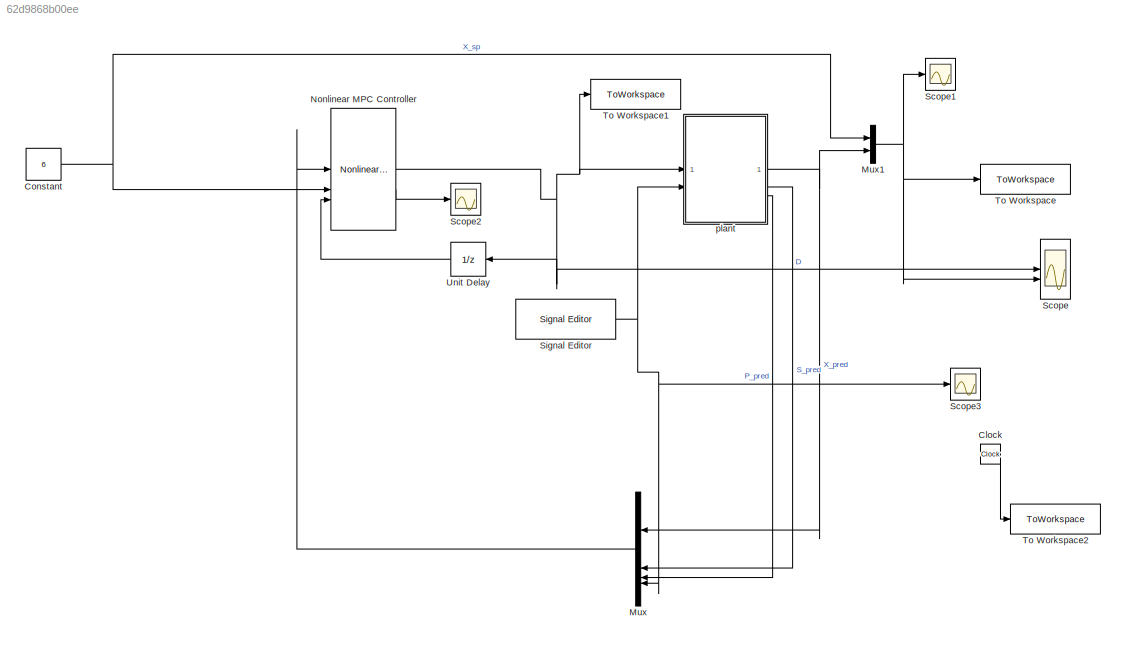
MODEL slx_62d9868b00ee
KIND model
CONFIG AbsTol = auto
CONFIG EnableMultiTasking = off
CONFIG FixedStep = auto
CONFIG MaxStep = auto
CONFIG MinStep = auto
CONFIG RelTol = 1e-3
CONFIG SampleTimeConstraint = Unconstrained
CONFIG SolverName = VariableStepAuto
CONFIG StartTime = 0.0
CONFIG StopTime = 500
BLOCK [Clock] Clock
BLOCK [Constant] Constant
  Value = 6
BLOCK [Mux] Mux
  DisplayOption = bar
BLOCK [Mux] Mux1
  DisplayOption = bar
  Inputs = 2
BLOCK [Reference] Nonlinear MPC Controller  REF=mpclib/Nonlinear MPC Controller  (lib defined in mdl_ae329e0e0455)
  SourceBlock = mpclib/Nonlinear MPC Controller
  SourceType = NonlinearMPC
BLOCK [Scope] Scope
  Floating = off
  NumInputPorts = 2
  ScopeSpecificationString = Simulink.scopes.TimeScopeBlockCfg('CurrentConfiguration', extmgr.ConfigurationSet(extmgr.Configuration('Core','General UI',true),extmgr.Configuration('Core','Source UI',true),extmgr.Configuration('Sources','WiredSimulink',true),extmgr.Configuration('Visuals','Time Domain',true,'SerializedDisplays',{struct('MinYLimReal','0.1518','MaxYLimReal','0.20745','YLabelReal','','MinYLimMag','0.1518','MaxYLim...<+2284ch>
BLOCK [Scope] Scope1
  Floating = off
  NumInputPorts = 1
  ScopeSpecificationString = Simulink.scopes.TimeScopeBlockCfg('CurrentConfiguration', extmgr.ConfigurationSet(extmgr.Configuration('Core','General UI',true),extmgr.Configuration('Core','Source UI',true),extmgr.Configuration('Sources','WiredSimulink',true,'DataLoggingVariableName','ScopeData1'),extmgr.Configuration('Visuals','Time Domain',true,'SerializedDisplays',{struct('MinYLimReal','-0.88895','MaxYLimReal','8.00056','YLab...<+1359ch>
BLOCK [Scope] Scope2
  Floating = off
  NumInputPorts = 1
  ScopeSpecificationString = Simulink.scopes.TimeScopeBlockCfg('CurrentConfiguration', extmgr.ConfigurationSet(extmgr.Configuration('Core','General UI',true),extmgr.Configuration('Core','Source UI',true),extmgr.Configuration('Sources','WiredSimulink',true,'DataLoggingVariableName','ScopeData2'),extmgr.Configuration('Visuals','Time Domain',true,'SerializedDisplays',{struct('MinYLimReal','0.875','MaxYLimReal','2.125','YLabelRea...<+1341ch>
BLOCK [Scope] Scope3
  Floating = off
  NumInputPorts = 1
  ScopeSpecificationString = Simulink.scopes.TimeScopeBlockCfg('CurrentConfiguration', extmgr.ConfigurationSet(extmgr.Configuration('Core','General UI',true),extmgr.Configuration('Core','Source UI',true),extmgr.Configuration('Sources','WiredSimulink',true,'DataLoggingVariableName','ScopeData1'),extmgr.Configuration('Visuals','Time Domain',true,'SerializedDisplays',{struct('MinYLimReal','0.34375','MaxYLimReal','0.40625','YLabe...<+1370ch>
BLOCK [Reference] Signal Editor  REF=SignalEditorBlockLib/Signal Editor
  LibrarySourceBlock = simulink/Sources/Signal Editor
  SourceBlock = SignalEditorBlockLib/Signal Editor
  SourceType = SignalEditor
  UserDataPersistent = on
BLOCK [ToWorkspace] To Workspace
  FixptAsFi = on
  MaxDataPoints = inf
  SampleTime = Ts
  SaveFormat = Timeseries
  VariableName = X_nom
BLOCK [ToWorkspace] To Workspace1
  FixptAsFi = on
  MaxDataPoints = inf
  SampleTime = Ts
  SaveFormat = Timeseries
  VariableName = D_nom
BLOCK [ToWorkspace] To Workspace2
  FixptAsFi = on
  MaxDataPoints = inf
  SampleTime = Ts
  SaveFormat = Timeseries
  VariableName = t_save
BLOCK [UnitDelay] Unit Delay
  HasFrameUpgradeWarning = on
  InitialCondition = 0.202
  SampleTime = Ts
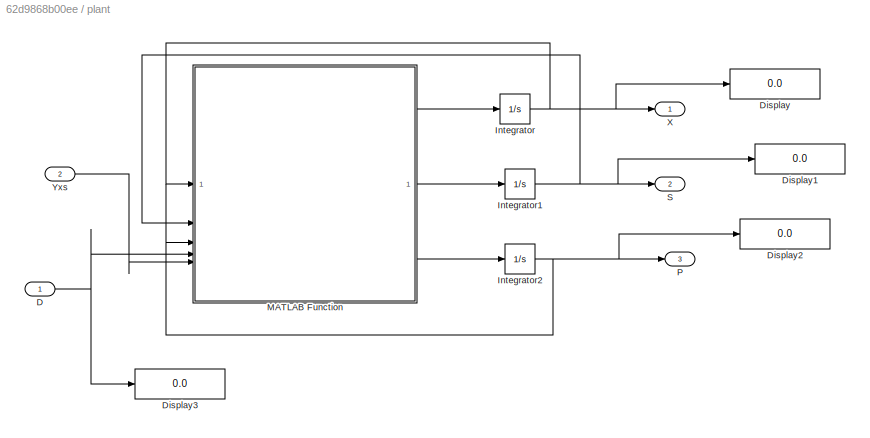
BLOCK [SubSystem] plant
BLOCK [Inport] plant/D
BLOCK [Display] plant/Display
  Decimation = 1
BLOCK [Display] plant/Display1
  Decimation = 1
BLOCK [Display] plant/Display2
  Decimation = 1
BLOCK [Display] plant/Display3
  Decimation = 1
BLOCK [Integrator] plant/Integrator
  InitialCondition = 5
BLOCK [Integrator] plant/Integrator1
  InitialCondition = 5
BLOCK [Integrator] plant/Integrator2
  InitialCondition = 19.14
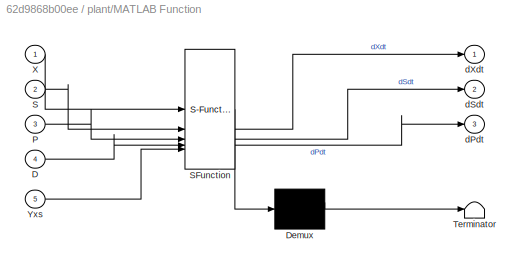
BLOCK [SubSystem] plant/MATLAB Function
  ErrorFcn = Stateflow.Translate.translate
  PermitHierarchicalResolution = ExplicitOnly
  SFBlockType = MATLAB Function
  TreatAsAtomicUnit = on
BLOCK [Demux] plant/MATLAB Function/ Demux 
  Outputs = 1
BLOCK [S-Function] plant/MATLAB Function/ SFunction 
  EnableBusSupport = on
  FunctionName = sf_sfun
  PortCounts = [5 4]
  SFcnIsStateOwnerBlock = off
  SFunctionDeploymentMode = off
  Tag = Stateflow S-Function 2
BLOCK [Terminator] plant/MATLAB Function/ Terminator 
BLOCK [Inport] plant/MATLAB Function/D
  Port = 4
BLOCK [Inport] plant/MATLAB Function/P
  Port = 3
BLOCK [Inport] plant/MATLAB Function/S
  Port = 2
BLOCK [Inport] plant/MATLAB Function/X
BLOCK [Inport] plant/MATLAB Function/Yxs
  Port = 5
BLOCK [Outport] plant/MATLAB Function/dPdt
  Port = 3
BLOCK [Outport] plant/MATLAB Function/dSdt
  Port = 2
BLOCK [Outport] plant/MATLAB Function/dXdt
BLOCK [Outport] plant/P
  Port = 3
BLOCK [Outport] plant/S
  Port = 2
BLOCK [Outport] plant/X
BLOCK [Inport] plant/Yxs
  Port = 2
LINE Clock:1 -> To Workspace2:1
NET Constant:1 -> Mux1:1, Nonlinear MPC Controller:2
NET Mux1:1 -> Scope1:1, Scope:2, To Workspace:1
LINE Mux:1 -> Nonlinear MPC Controller:1
NET Nonlinear MPC Controller:1 -> Scope:1, To Workspace1:1, Unit Delay:1, plant:1
LINE Nonlinear MPC Controller:2 -> Scope2:1
NET Signal Editor:1 -> Mux:4, Scope3:1, plant:2
LINE Unit Delay:1 -> Nonlinear MPC Controller:3
NET plant/D:1 -> plant/Display3:1, plant/MATLAB Function:4
NET plant/Integrator1:1 -> plant/Display1:1, plant/MATLAB Function:2, plant/S:1
NET plant/Integrator2:1 -> plant/Display2:1, plant/MATLAB Function:3, plant/P:1
NET plant/Integrator:1 -> plant/Display:1, plant/MATLAB Function:1, plant/X:1
LINE plant/MATLAB Function:1 -> plant/Integrator:1
LINE plant/MATLAB Function:2 -> plant/Integrator1:1
LINE plant/MATLAB Function:3 -> plant/Integrator2:1
LINE plant/Yxs:1 -> plant/MATLAB Function:5
NET plant:1 -> Mux1:2, Mux:1
LINE plant:2 -> Mux:2
LINE plant:3 -> Mux:3
note: NET lines group one-source signal fan-out (src -> all destinations, sorted); 1:1 wires keep LINE
CHART plant/MATLAB Function states=1 transitions=1
  STATE_LABEL 'eML_blk_kernel()'
  STATE_LABEL 'SCRIPT:\nfunction [dXdt,dSdt,dPdt] = continuous_fermenter(X,S,P,D,Yxs)\n\nvalues = {22,1.2,50,20,2.2,0.2,0.48};\n\n[Ki,Km,Pm,Sf,alpha,beta,miu_m] = values{:};\n\n\nmiu = (miu_m * (1 - (P/Pm))) * S / (Km + S + (S^2 / Ki))  ;\n\ndXdt = -D * X + miu * X     ;\n\ndSdt = D * (Sf - S) - (1/Yxs) * miu * X   ;\n\ndPdt = -D * P + (alpha * miu + beta) * X   ;\n\nend\n'
CHART  states=0 transitions=0
